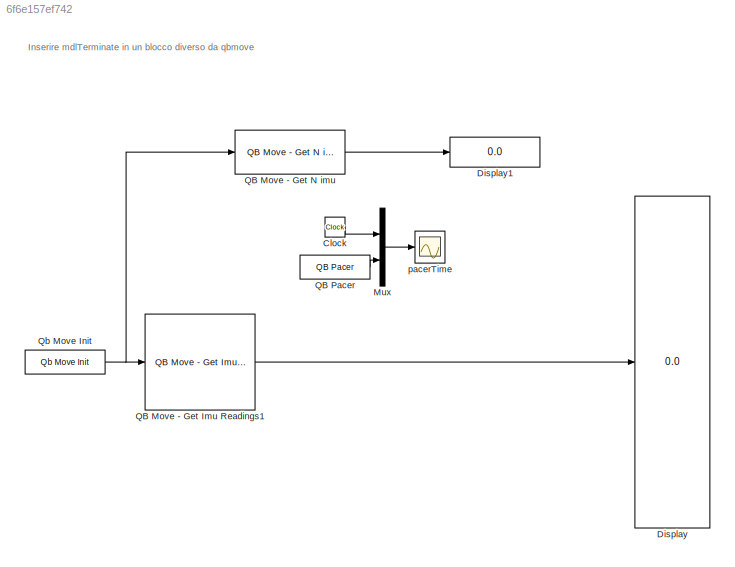
MODEL slx_6f6e157ef742
KIND model
CONFIG AbsTol = auto
CONFIG FixedStep = .0005
CONFIG MaxStep = auto
CONFIG MinStep = auto
CONFIG RelTol = 1e-3
CONFIG SampleTimeConstraint = Unconstrained
CONFIG Solver = ode1
CONFIG SolverMode = Auto
CONFIG SolverName = ode1
CONFIG StartTime = 0.0
CONFIG StopTime = inf
BLOCK [Clock] Clock
BLOCK [Display] Display
  Decimation = 1
  Ports = [1]
BLOCK [Display] Display1
  Commented = on
  Decimation = 1
  Ports = [1]
BLOCK [Mux] Mux
  DisplayOption = bar
  Inputs = 2
  Ports = [2, 1]
BLOCK [Reference] QB Move - Get Imu Readings1  REF=qbmove_library/QB Move - Get Imu Readings
  Ports = [1, 1]
  SourceBlock = qbmove_library/QB Move - Get Imu Readings
  SourceType = qb get imu reading
BLOCK [Reference] QB Move - Get N imu  REF=qbmove_library_2015b/QB Move - Get N imu
  Commented = on
  Ports = [1, 1]
  SourceBlock = qbmove_library_2015b/QB Move - Get N imu
  SourceType = qb move
BLOCK [Reference] QB Pacer  REF=QB_pacer_lib/QB Pacer
  Ports = [0, 1]
  SourceBlock = QB_pacer_lib/QB Pacer
  SourceType = RealTime_Pacer
BLOCK [Reference] Qb Move Init  REF=qbmove_library/Qb Move Init
  Ports = [0, 1]
  SourceBlock = qbmove_library/Qb Move Init
  SourceType = qb Init - ISS
BLOCK [Scope] pacerTime
  Ports = [1]
  ScopeSpecificationString = Simulink.scopes.TimeScopeBlockCfg('CurrentConfiguration', extmgr.ConfigurationSet(extmgr.Configuration('Core','General UI',true),extmgr.Configuration('Core','Source UI',true),extmgr.Configuration('Sources','WiredSimulink',true,'DataLoggingVariableName','ScopeData3','DataLoggingLimitDataPoints',true,'DataLoggingSaveFormat','Array','DataLoggingDecimation','1','DataLoggingDecimateData',true),extmgr.C...<+1554ch>
ANNOTATION (root): Inserire mdlTerminate in un blocco diverso da qbmove
LINE Clock:1 -> Mux:1
LINE Mux:1 -> pacerTime:1
LINE QB Move - Get Imu Readings1:1 -> Display:1
LINE QB Move - Get N imu:1 -> Display1:1
LINE QB Pacer:1 -> Mux:2
NET Qb Move Init:1 -> QB Move - Get Imu Readings1:1, QB Move - Get N imu:1
note: NET lines group one-source signal fan-out (src -> all destinations, sorted); 1:1 wires keep LINE
